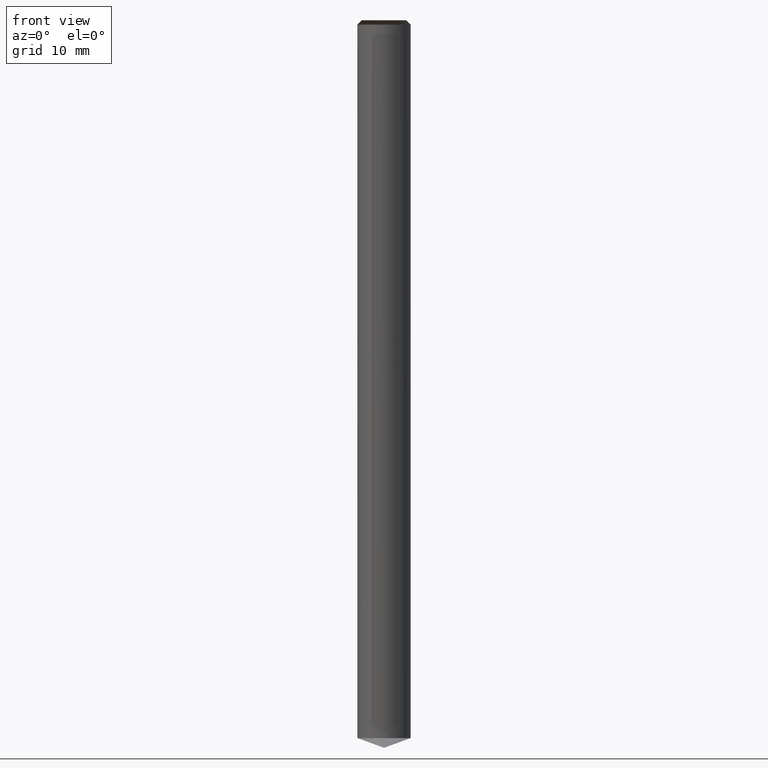
[diagram: clean part render]
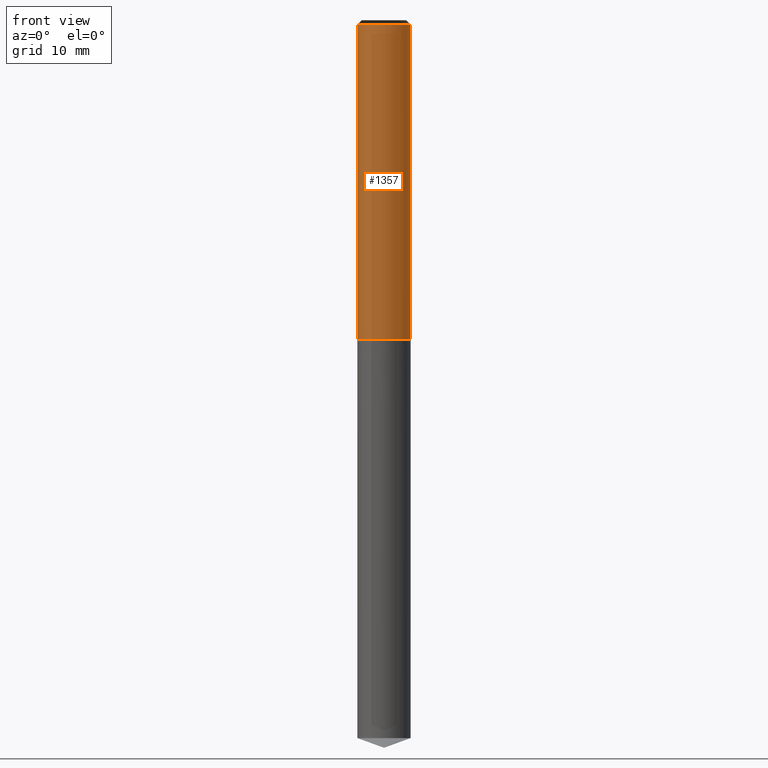
[diagram: same view with one face highlighted and labeled with its STEP entity id]
A machine part, front view. The second image highlights one B-rep face of the part: STEP entity #1357.
In plain terms, the highlighted face is a freeform B-spline surface patch.
Its self-contained STEP definition (entity closure, byte-faithful):
#1029=CARTESIAN_POINT('',(3.0,0.0,0.0));
#1033=CARTESIAN_POINT('',(-3.0,0.0,0.0));
#1034=CARTESIAN_POINT('',(3.0,0.0,35.5));
#1038=CARTESIAN_POINT('',(-3.0,0.0,35.5));
#1048=CARTESIAN_POINT('',(-3.0,-3.0,0.0));
#1049=CARTESIAN_POINT('',(0.0,-3.0,0.0));
#1050=CARTESIAN_POINT('',(3.0,-3.0,0.0));
#1051=CARTESIAN_POINT('',(-3.0,-3.0,35.5));
#1052=CARTESIAN_POINT('',(0.0,-3.0,35.5));
#1053=CARTESIAN_POINT('',(3.0,-3.0,35.5));
#1338=(
BOUNDED_SURFACE()
B_SPLINE_SURFACE(1,2,(
(#1033,#1048,#1049,#1050,#1029),
(#1038,#1051,#1052,#1053,#1034)
), .UNSPECIFIED.,.F.,.F.,.F.)
B_SPLINE_SURFACE_WITH_KNOTS((2,2),(3,2,3),(
0.0,1.0),(
0.0,0.5,1.0), .UNSPECIFIED.)
GEOMETRIC_REPRESENTATION_ITEM()
RATIONAL_B_SPLINE_SURFACE(((1.0,0.707106781187,1.0,0.707106781187,1.0),
(1.0,0.707106781187,1.0,0.707106781187,1.0)
))
REPRESENTATION_ITEM('')
SURFACE()
);
#1339=(
BOUNDED_CURVE()
B_SPLINE_CURVE(2,(#1029,#1050,#1049,#1048,#1033),.UNSPECIFIED.,.F.,.F.)
B_SPLINE_CURVE_WITH_KNOTS((3,2,3),
(0.0,0.5,1.0),.UNSPECIFIED.)
CURVE()
GEOMETRIC_REPRESENTATION_ITEM()
RATIONAL_B_SPLINE_CURVE((1.0,0.707106781187,1.0,0.707106781187,1.0))
REPRESENTATION_ITEM('')
);
#1340=(
BOUNDED_CURVE()
B_SPLINE_CURVE(1,(#1033,#1038),.UNSPECIFIED.,.F.,.F.)
B_SPLINE_CURVE_WITH_KNOTS((2,2),
(0.0,1.0),.UNSPECIFIED.)
CURVE()
GEOMETRIC_REPRESENTATION_ITEM()
RATIONAL_B_SPLINE_CURVE((1.0,1.0))
REPRESENTATION_ITEM('')
);
#1341=(
BOUNDED_CURVE()
B_SPLINE_CURVE(2,(#1038,#1051,#1052,#1053,#1034),.UNSPECIFIED.,.F.,.F.)
B_SPLINE_CURVE_WITH_KNOTS((3,2,3),
(0.0,0.5,1.0),.UNSPECIFIED.)
CURVE()
GEOMETRIC_REPRESENTATION_ITEM()
RATIONAL_B_SPLINE_CURVE((1.0,0.707106781187,1.0,0.707106781187,1.0))
REPRESENTATION_ITEM('')
);
#1342=(
BOUNDED_CURVE()
B_SPLINE_CURVE(1,(#1034,#1029),.UNSPECIFIED.,.F.,.F.)
B_SPLINE_CURVE_WITH_KNOTS((2,2),
(0.0,1.0),.UNSPECIFIED.)
CURVE()
GEOMETRIC_REPRESENTATION_ITEM()
RATIONAL_B_SPLINE_CURVE((1.0,1.0))
REPRESENTATION_ITEM('')
);
#1343=VERTEX_POINT('',#1029);
#1344=VERTEX_POINT('',#1033);
#1345=VERTEX_POINT('',#1034);
#1346=VERTEX_POINT('',#1038);
#1347=EDGE_CURVE('',#1343,#1344,#1339,.T.);
#1348=EDGE_CURVE('',#1344,#1346,#1340,.T.);
#1349=EDGE_CURVE('',#1346,#1345,#1341,.T.);
#1350=EDGE_CURVE('',#1345,#1343,#1342,.T.);
#1351=ORIENTED_EDGE('',*,*,#1347,.T.);
#1352=ORIENTED_EDGE('',*,*,#1348,.T.);
#1353=ORIENTED_EDGE('',*,*,#1349,.T.);
#1354=ORIENTED_EDGE('',*,*,#1350,.T.);
#1355=EDGE_LOOP('',(#1351,#1352,#1353,#1354));
#1356=FACE_OUTER_BOUND('',#1355,.T.);
#1357=ADVANCED_FACE('',(#1356),#1338,.T.);